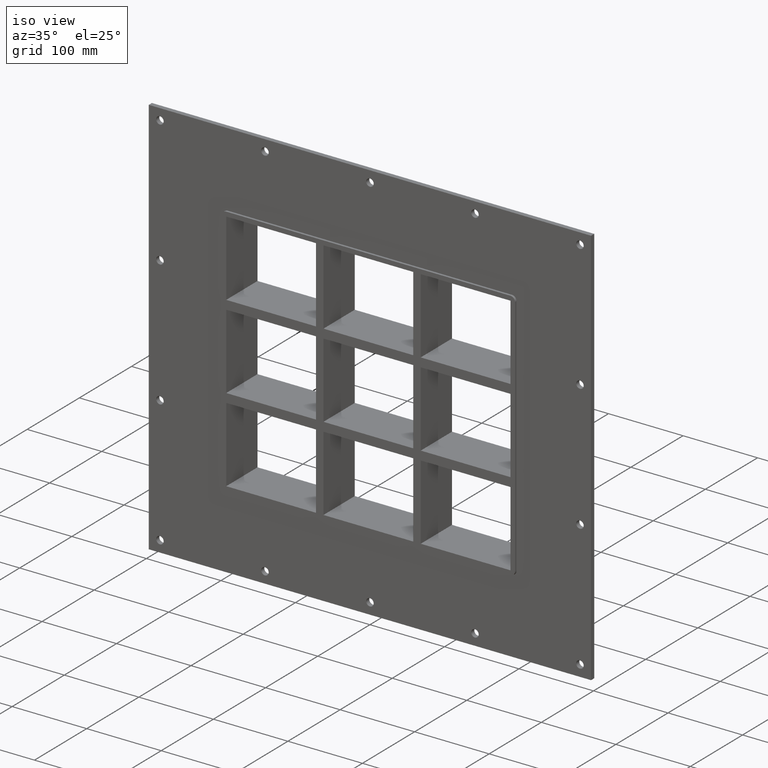
[diagram: clean part render]
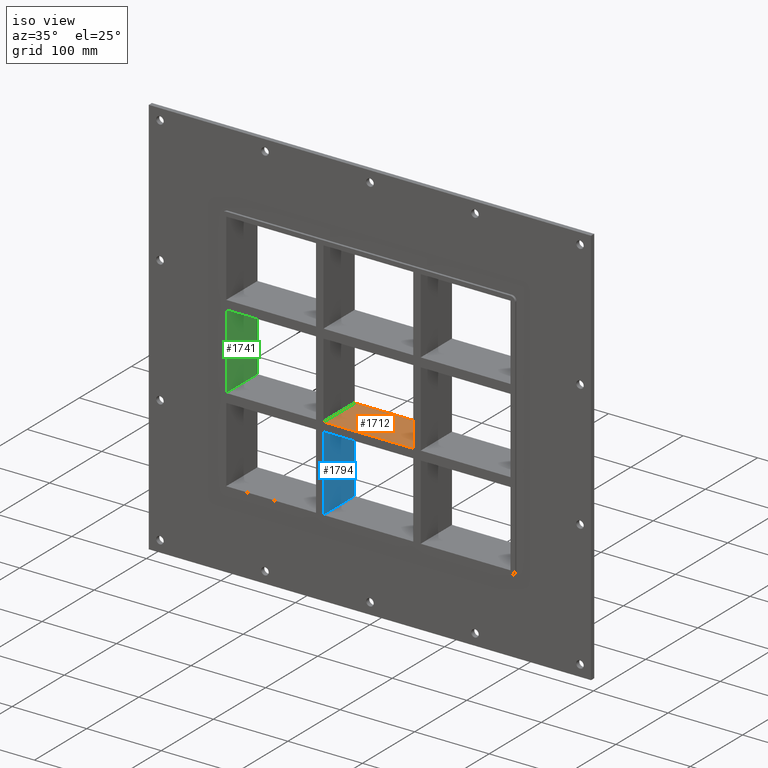
[diagram: same view with three faces highlighted in distinct colors, each labeled with its STEP entity id]
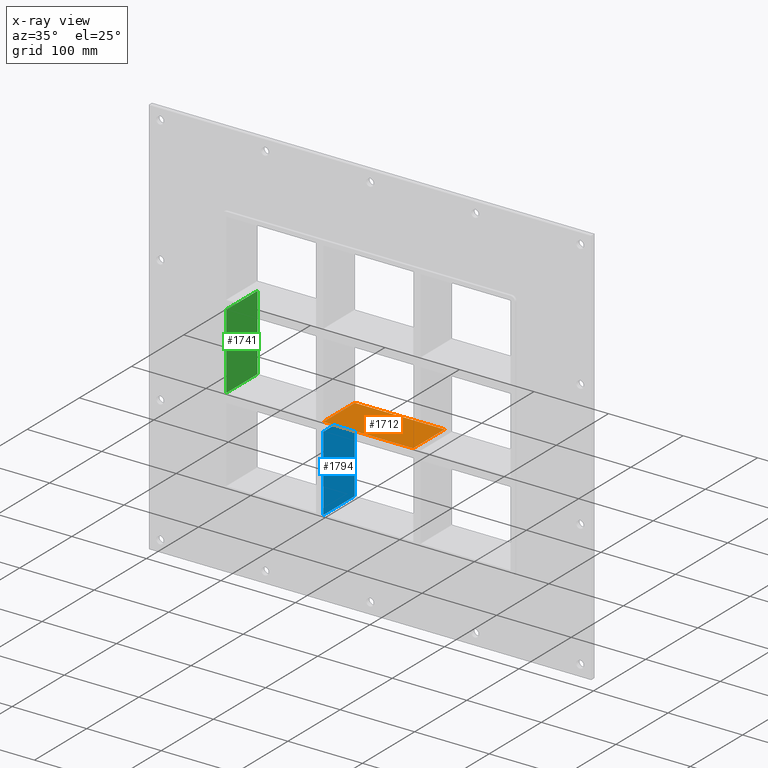
[diagram: x-ray of the same camera — body ghosted, the three highlighted faces saturated]
A machine part, iso view with three faces highlighted in distinct colors.
The next image is the same camera in x-ray (body ghosted, the three faces saturated) — at least one of them is partly hidden behind the body in this view.
Their STEP definitions:

[orange] entity #1712 — the highlighted planar face has unit normal (0, 0, 1).
#1082=CARTESIAN_POINT('',(-60.249999999996362,57.0,-50.500000000000114));
#1083=VERTEX_POINT('',#1082);
#1090=CARTESIAN_POINT('',(60.249999999998693,57.0,-50.500000000000114));
#1091=VERTEX_POINT('',#1090);
#1092=CARTESIAN_POINT('',(-60.249999999996362,57.0,-50.500000000000114));
#1093=DIRECTION('',(1.0,0.0,0.0));
#1094=VECTOR('',#1093,120.49999999999503);
#1095=LINE('',#1092,#1094);
#1096=EDGE_CURVE('',#1083,#1091,#1095,.T.);
#1227=CARTESIAN_POINT('',(60.249999999998693,-3.0,-50.500000000000114));
#1228=VERTEX_POINT('',#1227);
#1229=CARTESIAN_POINT('',(60.249999999998678,-3.0,-50.500000000000114));
#1230=DIRECTION('',(0.0,1.0,0.0));
#1231=VECTOR('',#1230,60.0);
#1232=LINE('',#1229,#1231);
#1233=EDGE_CURVE('',#1228,#1091,#1232,.T.);
#1476=CARTESIAN_POINT('',(-60.249999999996362,-3.0,-50.500000000000114));
#1477=VERTEX_POINT('',#1476);
#1478=CARTESIAN_POINT('',(-60.249999999996362,-3.0,-50.500000000000114));
#1479=DIRECTION('',(1.0,0.0,0.0));
#1480=VECTOR('',#1479,120.49999999999503);
#1481=LINE('',#1478,#1480);
#1482=EDGE_CURVE('',#1477,#1228,#1481,.T.);
#1696=CARTESIAN_POINT('',(-190.74999999999972,-3.0,-50.500000000000114));
#1697=DIRECTION('',(0.0,0.0,1.0));
#1698=DIRECTION('',(1.0,0.0,0.0));
#1699=AXIS2_PLACEMENT_3D('',#1696,#1697,#1698);
#1700=PLANE('',#1699);
#1701=ORIENTED_EDGE('',*,*,#1233,.T.);
#1702=ORIENTED_EDGE('',*,*,#1096,.F.);
#1703=CARTESIAN_POINT('',(-60.249999999996362,-3.0,-50.500000000000114));
#1704=DIRECTION('',(0.0,1.0,0.0));
#1705=VECTOR('',#1704,60.0);
#1706=LINE('',#1703,#1705);
#1707=EDGE_CURVE('',#1477,#1083,#1706,.T.);
#1708=ORIENTED_EDGE('',*,*,#1707,.F.);
#1709=ORIENTED_EDGE('',*,*,#1482,.T.);
#1710=EDGE_LOOP('',(#1701,#1702,#1708,#1709));
#1711=FACE_OUTER_BOUND('',#1710,.T.);
#1712=ADVANCED_FACE('',(#1711),#1700,.T.);

[blue] entity #1794 — the highlighted planar face has unit normal (1, 0, 0).
#1150=CARTESIAN_POINT('',(-60.249999999996362,57.0,-62.500000000009372));
#1151=VERTEX_POINT('',#1150);
#1158=CARTESIAN_POINT('',(-60.249999999996362,57.0,-163.49999999998431));
#1159=VERTEX_POINT('',#1158);
#1160=CARTESIAN_POINT('',(-60.249999999996362,57.0,-62.500000000009379));
#1161=DIRECTION('',(0.0,0.0,-1.0));
#1162=VECTOR('',#1161,100.99999999997493);
#1163=LINE('',#1160,#1162);
#1164=EDGE_CURVE('',#1151,#1159,#1163,.T.);
#1337=CARTESIAN_POINT('',(-60.249999999996362,-3.0,-163.49999999998431));
#1338=VERTEX_POINT('',#1337);
#1339=CARTESIAN_POINT('',(-60.249999999996362,57.000000000000007,-163.50000000000009));
#1340=DIRECTION('',(0.0,-1.0,0.0));
#1341=VECTOR('',#1340,60.000000000000007);
#1342=LINE('',#1339,#1341);
#1343=EDGE_CURVE('',#1159,#1338,#1342,.T.);
#1534=CARTESIAN_POINT('',(-60.249999999996362,-3.0,-62.500000000009372));
#1535=VERTEX_POINT('',#1534);
#1536=CARTESIAN_POINT('',(-60.249999999996362,-3.0,-62.500000000009379));
#1537=DIRECTION('',(0.0,0.0,-1.0));
#1538=VECTOR('',#1537,100.99999999997493);
#1539=LINE('',#1536,#1538);
#1540=EDGE_CURVE('',#1535,#1338,#1539,.T.);
#1664=CARTESIAN_POINT('',(-60.249999999996355,57.0,-62.500000000009372));
#1665=DIRECTION('',(0.0,-1.0,0.0));
#1666=VECTOR('',#1665,60.0);
#1667=LINE('',#1664,#1666);
#1668=EDGE_CURVE('',#1151,#1535,#1667,.T.);
#1783=CARTESIAN_POINT('',(-60.249999999996362,-3.0,163.5));
#1784=DIRECTION('',(1.0,0.0,0.0));
#1785=DIRECTION('',(0.0,0.0,-1.0));
#1786=AXIS2_PLACEMENT_3D('',#1783,#1784,#1785);
#1787=PLANE('',#1786);
#1788=ORIENTED_EDGE('',*,*,#1668,.T.);
#1789=ORIENTED_EDGE('',*,*,#1540,.T.);
#1790=ORIENTED_EDGE('',*,*,#1343,.F.);
#1791=ORIENTED_EDGE('',*,*,#1164,.F.);
#1792=EDGE_LOOP('',(#1788,#1789,#1790,#1791));
#1793=FACE_OUTER_BOUND('',#1792,.T.);
#1794=ADVANCED_FACE('',(#1793),#1787,.T.);

[green] entity #1741 — the highlighted planar face has unit normal (-1, 0, 0).
#475=CARTESIAN_POINT('',(-190.74999999999972,-3.0,50.499999999990628));
#476=VERTEX_POINT('',#475);
#483=CARTESIAN_POINT('',(-190.74999999999972,57.0,50.499999999990628));
#484=VERTEX_POINT('',#483);
#485=CARTESIAN_POINT('',(-190.75000000000003,57.000000000000007,50.499999999990628));
#486=DIRECTION('',(0.0,-1.0,0.0));
#487=VECTOR('',#486,60.000000000000007);
#488=LINE('',#485,#487);
#489=EDGE_CURVE('',#484,#476,#488,.T.);
#1023=CARTESIAN_POINT('',(-190.74999999999972,57.0,-50.500000000000114));
#1024=VERTEX_POINT('',#1023);
#1025=CARTESIAN_POINT('',(-190.75000000000003,57.0,50.499999999990635));
#1026=DIRECTION('',(0.0,0.0,-1.0));
#1027=VECTOR('',#1026,100.99999999999075);
#1028=LINE('',#1025,#1027);
#1029=EDGE_CURVE('',#484,#1024,#1028,.T.);
#1506=CARTESIAN_POINT('',(-190.74999999999972,-3.0,-50.500000000000114));
#1507=VERTEX_POINT('',#1506);
#1514=CARTESIAN_POINT('',(-190.75000000000003,-3.0,-50.500000000000114));
#1515=DIRECTION('',(0.0,0.0,1.0));
#1516=VECTOR('',#1515,100.99999999999075);
#1517=LINE('',#1514,#1516);
#1518=EDGE_CURVE('',#1507,#476,#1517,.T.);
#1720=CARTESIAN_POINT('',(-190.75000000000003,-3.0,-50.500000000000114));
#1721=DIRECTION('',(0.0,1.0,0.0));
#1722=VECTOR('',#1721,60.000000000000007);
#1723=LINE('',#1720,#1722);
#1724=EDGE_CURVE('',#1507,#1024,#1723,.T.);
#1730=CARTESIAN_POINT('',(-190.75000000000003,0.0,-163.50000000000009));
#1731=DIRECTION('',(-1.0,0.0,0.0));
#1732=DIRECTION('',(0.0,0.0,1.0));
#1733=AXIS2_PLACEMENT_3D('',#1730,#1731,#1732);
#1734=PLANE('',#1733);
#1735=ORIENTED_EDGE('',*,*,#489,.T.);
#1736=ORIENTED_EDGE('',*,*,#1518,.F.);
#1737=ORIENTED_EDGE('',*,*,#1724,.T.);
#1738=ORIENTED_EDGE('',*,*,#1029,.F.);
#1739=EDGE_LOOP('',(#1735,#1736,#1737,#1738));
#1740=FACE_OUTER_BOUND('',#1739,.T.);
#1741=ADVANCED_FACE('',(#1740),#1734,.F.);